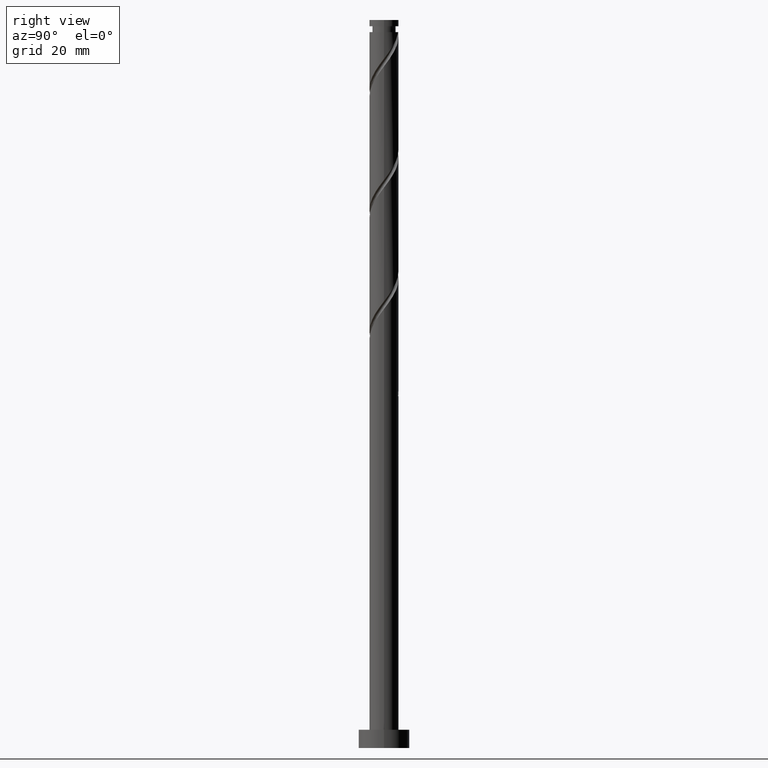
[diagram: clean part render]
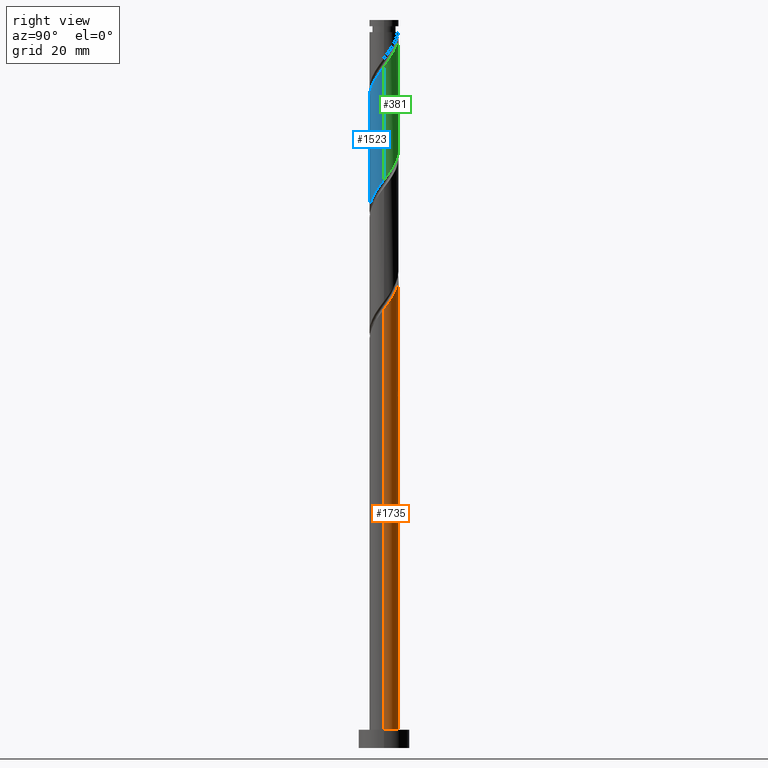
[diagram: same view with three faces highlighted in distinct colors, each labeled with its STEP entity id]
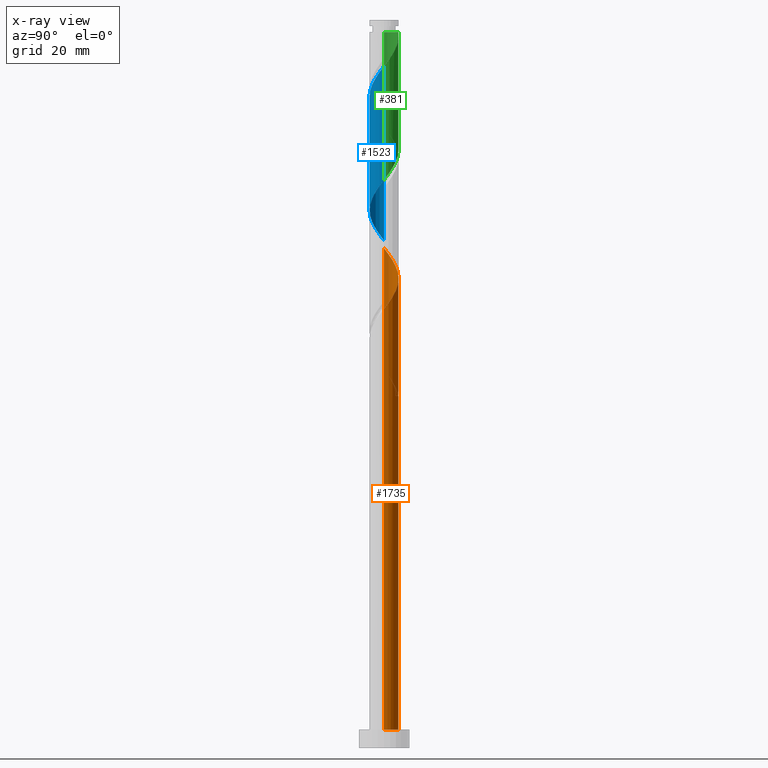
[diagram: x-ray of the same camera — body ghosted, the three highlighted faces saturated]
A machine part, right view with three faces highlighted in distinct colors.
The next image is the same camera in x-ray (body ghosted, the three faces saturated) — at least one of them is partly hidden behind the body in this view.
Their STEP definitions:

[orange] entity #1735 — the highlighted cylindrical surface (edge-blend (fillet) strip) has radius 4 mm, axis along (-0, -0, -1).
#6 =( BOUNDED_CURVE ( )  B_SPLINE_CURVE ( 2, ( #955, #1389, #193, #719, #1507, #1363, #165, #1101, #58, #158, #695, #1652, #587, #1117, #30, #1669, #457, #1231, #560, #988, #813, #443, #1354, #1092, #973, #961, #684 ),
 .UNSPECIFIED., .F., .T. ) 
 B_SPLINE_CURVE_WITH_KNOTS ( ( 3, 2, 2, 2, 2, 2, 2, 2, 2, 2, 2, 2, 2, 3 ),
 ( 0.1795317669814464612, 0.1875000000000000000, 0.1979166666666666297, 0.2083333333333333703, 0.2187500000000000000, 0.2291666666666666297, 0.2395833333333333703, 0.2500000000000000000, 0.2604166666666666297, 0.2708333333333333703, 0.2812500000000000000, 0.2916666666666666297, 0.3020833333333333703, 0.3045317669814465722 ),
 .UNSPECIFIED. ) 
 CURVE ( )  GEOMETRIC_REPRESENTATION_ITEM ( )  RATIONAL_B_SPLINE_CURVE ( ( 0.9062941362546487190, 0.9031415850403532453, 0.9090909090909286006, 0.9013135103398470793, 0.9090909090909286006, 0.9013135103398470793, 0.9090909090909286006, 0.9013135103398470793, 0.9090909090909286006, 0.9013135103398470793, 0.9090909090909286006, 0.9013135103398470793, 0.9090909090909286006, 0.9013135103398470793, 0.9090909090909286006, 0.9013135103398470793, 0.9090909090909286006, 0.9013135103398470793, 0.9090909090909286006, 0.9013135103398470793, 0.9090909090909286006, 0.9013135103398470793, 0.9090909090909286006, 0.9013135103398470793, 0.9090909090909286006, 0.9072628343904222126, 0.9062941362546487190 ) ) 
 REPRESENTATION_ITEM ( '' )  );
#15 = CARTESIAN_POINT ( 'NONE',  ( -3.960099130553272673, 0.7713189730113414466, 102.9342140720617920 ) ) ;
#24 = DIRECTION ( 'NONE',  ( -0.000000000000000000, -0.000000000000000000, -1.000000000000000000 ) ) ;
#30 = CARTESIAN_POINT ( 'NONE',  ( -0.7959899496852970158, 3.920000000000007034, 130.0175474053951632 ) ) ;
#35 = CARTESIAN_POINT ( 'NONE',  ( -2.209008691072453789, 3.334708473430078257, 100.8508807387284918 ) ) ;
#58 = CARTESIAN_POINT ( 'NONE',  ( 2.209008691072459563, 3.334708473430083142, 125.8508807387284918 ) ) ;
#63 = CARTESIAN_POINT ( 'NONE',  ( -0.2457034069343166927, 3.992446597741898806, 98.07310296095072033 ) ) ;
#78 = CARTESIAN_POINT ( 'NONE',  ( 0.000000000000000000, 0.000000000000000000, 200.0000000000000000 ) ) ;
#101 = ORIENTED_EDGE ( 'NONE', *, *, #253, .T. ) ;
#111 = CARTESIAN_POINT ( 'NONE',  ( -4.000000000000007994, -2.706634984295222451E-15, 103.9539807501851101 ) ) ;
#158 = CARTESIAN_POINT ( 'NONE',  ( 1.769985991819537530, 3.625529984802036143, 126.5453251831729347 ) ) ;
#162 = CARTESIAN_POINT ( 'NONE',  ( -1.783437906669447903, 3.580411880364402499, 98.07310296095070612 ) ) ;
#165 = CARTESIAN_POINT ( 'NONE',  ( 2.996824607992359724, 2.649347517584565992, 124.4619918498395919 ) ) ;
#172 = CARTESIAN_POINT ( 'NONE',  ( -2.996824607992350842, 2.649347517584564216, 102.2397696276173775 ) ) ;
#174 = EDGE_CURVE ( 'NONE', #388, #1060, #589, .T. ) ;
#190 = CARTESIAN_POINT ( 'NONE',  ( -3.815205935069465149, 1.312067740227889523, 104.3231029609507203 ) ) ;
#193 = CARTESIAN_POINT ( 'NONE',  ( 3.920000000000007034, 0.7959899496852972378, 121.6842140720618204 ) ) ;
#213 = CARTESIAN_POINT ( 'NONE',  ( 0.2799121591427054523, 4.024794064930535598, 97.37865851650629168 ) ) ;
#217 = AXIS2_PLACEMENT_3D ( 'NONE', #978, #550, #827 ) ;
#253 = EDGE_CURVE ( 'NONE', #1356, #337, #1515, .T. ) ;
#281 = CARTESIAN_POINT ( 'NONE',  ( -3.792814557677654630, 1.270652482415438600, 102.2397696276173775 ) ) ;
#282 = CARTESIAN_POINT ( 'NONE',  ( 4.000000000000007994, 1.046764911053401024E-16, 120.6206474168517673 ) ) ;
#291 = CARTESIAN_POINT ( 'NONE',  ( -4.000000000000000000, 0.000000000000000000, 5.000000000000000000 ) ) ;
#309 = CARTESIAN_POINT ( 'NONE',  ( -2.649347517584567324, 2.996824607992357059, 99.46199184983960606 ) ) ;
#318 = CARTESIAN_POINT ( 'NONE',  ( -4.000000000000000000, 4.740349668627582263E-15, 106.0811140606051879 ) ) ;
#323 = DIRECTION ( 'NONE',  ( -1.000000000000000000, 0.000000000000000000, 0.000000000000000000 ) ) ;
#337 = VERTEX_POINT ( 'NONE', #1238 ) ;
#357 = ORIENTED_EDGE ( 'NONE', *, *, #404, .F. ) ;
#388 = VERTEX_POINT ( 'NONE', #426 ) ;
#404 = EDGE_CURVE ( 'NONE', #1356, #672, #6, .T. ) ;
#426 = CARTESIAN_POINT ( 'NONE',  ( -0.7959899496852969047, 3.920000000000007478, 96.68421407206182039 ) ) ;
#429 = VECTOR ( 'NONE', #24, 1000.000000000000000 ) ;
#439 = AXIS2_PLACEMENT_3D ( 'NONE', #1216, #1241, #957 ) ;
#443 = CARTESIAN_POINT ( 'NONE',  ( -3.625529984802037031, 1.769985991819535753, 134.8786585165062775 ) ) ;
#457 = CARTESIAN_POINT ( 'NONE',  ( -1.783437906669447903, 3.580411880364402499, 131.4064362942840773 ) ) ;
#469 = DIRECTION ( 'NONE',  ( -0.000000000000000000, -0.000000000000000000, -1.000000000000000000 ) ) ;
#481 = CARTESIAN_POINT ( 'NONE',  ( -4.000000000000007994, -2.706634984295222451E-15, 103.9539807501851101 ) ) ;
#518 = ORIENTED_EDGE ( 'NONE', *, *, #912, .T. ) ;
#550 = DIRECTION ( 'NONE',  ( 0.000000000000000000, -2.602085213965211588E-14, -1.000000000000000000 ) ) ;
#557 = CARTESIAN_POINT ( 'NONE',  ( -3.345617825659326083, 2.254808073111003619, 102.9342140720618488 ) ) ;
#560 = CARTESIAN_POINT ( 'NONE',  ( -2.649347517584567324, 2.996824607992357059, 132.7953251831729062 ) ) ;
#563 = CARTESIAN_POINT ( 'NONE',  ( -0.7959899496852969047, 3.920000000000007478, 96.68421407206182039 ) ) ;
#576 = CARTESIAN_POINT ( 'NONE',  ( 4.000000000000000000, 4.898587196589412829E-16, 200.0000000000000000 ) ) ;
#587 = CARTESIAN_POINT ( 'NONE',  ( 0.2457034069343214111, 3.992446597741906356, 128.6286585165062775 ) ) ;
#589 =( BOUNDED_CURVE ( )  B_SPLINE_CURVE ( 2, ( #563, #921, #162, #691, #309, #1376, #706, #1476, #281, #15, #1673, #1624, #111 ),
 .UNSPECIFIED., .F., .T. ) 
 B_SPLINE_CURVE_WITH_KNOTS ( ( 3, 2, 2, 2, 2, 2, 3 ),
 ( 0.000000000000000000, 0.01041666666666662966, 0.02083333333333337034, 0.03125000000000000000, 0.04166666666666662966, 0.05208333333333337034, 0.05453176698144659301 ),
 .UNSPECIFIED. ) 
 CURVE ( )  GEOMETRIC_REPRESENTATION_ITEM ( )  RATIONAL_B_SPLINE_CURVE ( ( 0.9090909090909286006, 0.9013135103398470793, 0.9090909090909286006, 0.9013135103398470793, 0.9090909090909286006, 0.9013135103398470793, 0.9090909090909286006, 0.9013135103398470793, 0.9090909090909286006, 0.9013135103398470793, 0.9090909090909286006, 0.9072628343904221015, 0.9062941362546486079 ) ) 
 REPRESENTATION_ITEM ( '' )  );
#638 = VERTEX_POINT ( 'NONE', #1332 ) ;
#672 = VERTEX_POINT ( 'NONE', #1592 ) ;
#683 = EDGE_LOOP ( 'NONE', ( #357, #101, #1488, #964, #1299, #518, #1640, #948 ) ) ;
#684 = CARTESIAN_POINT ( 'NONE',  ( -4.000000000000007994, -2.706634984295222451E-15, 137.2873140835184245 ) ) ;
#691 = CARTESIAN_POINT ( 'NONE',  ( -2.254808073111005395, 3.345617825659331412, 98.76754740539513477 ) ) ;
#695 = CARTESIAN_POINT ( 'NONE',  ( 1.270652482415440376, 3.792814557677653742, 127.2397696276173775 ) ) ;
#699 = CARTESIAN_POINT ( 'NONE',  ( -2.648031390325375600, 3.043886962058126588, 101.5453251831729204 ) ) ;
#706 = CARTESIAN_POINT ( 'NONE',  ( -3.334708473430084030, 2.209008691072459118, 100.8508807387284918 ) ) ;
#716 = CARTESIAN_POINT ( 'NONE',  ( -3.580411880364394950, 1.783437906669446349, 103.6286585165062633 ) ) ;
#719 = CARTESIAN_POINT ( 'NONE',  ( 3.815205935069472254, 1.312067740227889523, 122.3786585165062633 ) ) ;
#725 = CARTESIAN_POINT ( 'NONE',  ( -1.270652482415435047, 3.792814557677647525, 99.46199184983959185 ) ) ;
#757 = CARTESIAN_POINT ( 'NONE',  ( -1.769985991819531534, 3.625529984802031702, 100.1564362942840347 ) ) ;
#798 = AXIS2_PLACEMENT_3D ( 'NONE', #78, #469, #323 ) ;
#810 = CARTESIAN_POINT ( 'NONE',  ( -3.999999999999999112, 0.4020151261036938872, 105.5476876914159448 ) ) ;
#813 = CARTESIAN_POINT ( 'NONE',  ( -3.334708473430084030, 2.209008691072459118, 134.1842140720618488 ) ) ;
#827 = DIRECTION ( 'NONE',  ( 0.000000000000000000, 1.000000000000000000, -2.775557561562891351E-14 ) ) ;
#845 = CARTESIAN_POINT ( 'NONE',  ( -3.919999999999999929, 0.7959899496852972378, 105.0175474053951206 ) ) ;
#912 = EDGE_CURVE ( 'NONE', #388, #1451, #1506, .T. ) ;
#921 = CARTESIAN_POINT ( 'NONE',  ( -1.312067740227890189, 3.815205935069471810, 97.37865851650624904 ) ) ;
#948 = ORIENTED_EDGE ( 'NONE', *, *, #1635, .F. ) ;
#955 = CARTESIAN_POINT ( 'NONE',  ( 4.000000000000007994, 1.046764911053401024E-16, 120.6206474168517673 ) ) ;
#957 = DIRECTION ( 'NONE',  ( 1.000000000000000000, 0.000000000000000000, 0.000000000000000000 ) ) ;
#961 = CARTESIAN_POINT ( 'NONE',  ( -4.000000000000007994, 0.1229678066306816031, 137.1241503954902896 ) ) ;
#964 = ORIENTED_EDGE ( 'NONE', *, *, #1126, .F. ) ;
#973 = CARTESIAN_POINT ( 'NONE',  ( -3.992446597741906356, 0.2457034069343187743, 136.9619918498395919 ) ) ;
#978 = CARTESIAN_POINT ( 'NONE',  ( 0.000000000000000000, 0.000000000000000000, 96.68421407206193408 ) ) ;
#988 = CARTESIAN_POINT ( 'NONE',  ( -3.043886962058130141, 2.648031390325381373, 133.4897696276173633 ) ) ;
#993 = CARTESIAN_POINT ( 'NONE',  ( -4.000000000000000000, 0.000000000000000000, 200.0000000000000000 ) ) ;
#997 = EDGE_CURVE ( 'NONE', #638, #1451, #1561, .T. ) ;
#1060 = VERTEX_POINT ( 'NONE', #481 ) ;
#1079 = CARTESIAN_POINT ( 'NONE',  ( 0.7959899496852979039, 3.919999999999999041, 96.68421407206182039 ) ) ;
#1092 = CARTESIAN_POINT ( 'NONE',  ( -3.960099130553272673, 0.7713189730113414466, 136.2675474053951064 ) ) ;
#1101 = CARTESIAN_POINT ( 'NONE',  ( 2.648031390325384038, 3.043886962058128809, 125.1564362942839921 ) ) ;
#1103 = VECTOR ( 'NONE', #1557, 1000.000000000000000 ) ;
#1117 = CARTESIAN_POINT ( 'NONE',  ( -0.2799121591427010669, 4.024794064930541815, 129.3231029609507345 ) ) ;
#1126 = EDGE_CURVE ( 'NONE', #1060, #1499, #1285, .T. ) ;
#1188 = CIRCLE ( 'NONE', #439, 4.000000000000000000 ) ;
#1216 = CARTESIAN_POINT ( 'NONE',  ( 0.000000000000000000, 0.000000000000000000, 5.000000000000000000 ) ) ;
#1231 = CARTESIAN_POINT ( 'NONE',  ( -2.254808073111005395, 3.345617825659331412, 132.1008807387285060 ) ) ;
#1238 = CARTESIAN_POINT ( 'NONE',  ( 4.000000000000000000, 4.898587196589412829E-16, 5.000000000000000000 ) ) ;
#1241 = DIRECTION ( 'NONE',  ( 0.000000000000000000, 0.000000000000000000, 1.000000000000000000 ) ) ;
#1257 = LINE ( 'NONE', #1691, #1274 ) ;
#1266 = FACE_OUTER_BOUND ( 'NONE', #683, .T. ) ;
#1274 = VECTOR ( 'NONE', #1543, 1000.000000000000000 ) ;
#1285 = LINE ( 'NONE', #993, #1103 ) ;
#1299 = ORIENTED_EDGE ( 'NONE', *, *, #174, .F. ) ;
#1332 = CARTESIAN_POINT ( 'NONE',  ( -4.000000000000000000, 4.740349668627582263E-15, 106.0811140606051879 ) ) ;
#1354 = CARTESIAN_POINT ( 'NONE',  ( -3.792814557677654630, 1.270652482415438600, 135.5731029609507345 ) ) ;
#1356 = VERTEX_POINT ( 'NONE', #282 ) ;
#1363 = CARTESIAN_POINT ( 'NONE',  ( 3.345617825659333633, 2.254808073111004063, 123.7675474053951490 ) ) ;
#1376 = CARTESIAN_POINT ( 'NONE',  ( -3.043886962058130141, 2.648031390325381373, 100.1564362942840489 ) ) ;
#1389 = CARTESIAN_POINT ( 'NONE',  ( 4.000000000000007105, 0.4020151261036901125, 121.1540737860410815 ) ) ;
#1409 = EDGE_CURVE ( 'NONE', #337, #1499, #1188, .T. ) ;
#1451 = VERTEX_POINT ( 'NONE', #1079 ) ;
#1476 = CARTESIAN_POINT ( 'NONE',  ( -3.625529984802037031, 1.769985991819535753, 101.5453251831729062 ) ) ;
#1488 = ORIENTED_EDGE ( 'NONE', *, *, #1409, .T. ) ;
#1499 = VERTEX_POINT ( 'NONE', #291 ) ;
#1506 = CIRCLE ( 'NONE', #217, 4.000000000000000000 ) ;
#1507 = CARTESIAN_POINT ( 'NONE',  ( 3.580411880364403387, 1.783437906669446793, 123.0731029609507061 ) ) ;
#1515 = LINE ( 'NONE', #576, #429 ) ;
#1543 = DIRECTION ( 'NONE',  ( -0.000000000000000000, -0.000000000000000000, -1.000000000000000000 ) ) ;
#1557 = DIRECTION ( 'NONE',  ( -0.000000000000000000, -0.000000000000000000, -1.000000000000000000 ) ) ;
#1561 =( BOUNDED_CURVE ( )  B_SPLINE_CURVE ( 2, ( #318, #810, #845, #190, #716, #557, #172, #699, #35, #757, #725, #1674, #63, #213, #1685 ),
 .UNSPECIFIED., .F., .T. ) 
 B_SPLINE_CURVE_WITH_KNOTS ( ( 3, 2, 2, 2, 2, 2, 2, 3 ),
 ( 0.9295317669814464612, 0.9375000000000000000, 0.9479166666666666297, 0.9583333333333333703, 0.9687500000000000000, 0.9791666666666666297, 0.9895833333333333703, 1.000000000000000000 ),
 .UNSPECIFIED. ) 
 CURVE ( )  GEOMETRIC_REPRESENTATION_ITEM ( )  RATIONAL_B_SPLINE_CURVE ( ( 0.9062941362546415025, 0.9031415850403459178, 0.9090909090909213841, 0.9013135103398396408, 0.9090909090909213841, 0.9013135103398396408, 0.9090909090909213841, 0.9013135103398396408, 0.9090909090909213841, 0.9013135103398396408, 0.9090909090909213841, 0.9013135103398396408, 0.9090909090909213841, 0.9013135103398396408, 0.9090909090909213841 ) ) 
 REPRESENTATION_ITEM ( '' )  );
#1592 = CARTESIAN_POINT ( 'NONE',  ( -4.000000000000007994, -2.706634984295222451E-15, 137.2873140835184245 ) ) ;
#1624 = CARTESIAN_POINT ( 'NONE',  ( -4.000000000000008882, 0.1229678066306806039, 103.7908170621569752 ) ) ;
#1635 = EDGE_CURVE ( 'NONE', #672, #638, #1257, .T. ) ;
#1640 = ORIENTED_EDGE ( 'NONE', *, *, #997, .F. ) ;
#1652 = CARTESIAN_POINT ( 'NONE',  ( 0.7713189730113436671, 3.960099130553271340, 127.9342140720618204 ) ) ;
#1669 = CARTESIAN_POINT ( 'NONE',  ( -1.312067740227890189, 3.815205935069471810, 130.7119918498396203 ) ) ;
#1673 = CARTESIAN_POINT ( 'NONE',  ( -3.992446597741906356, 0.2457034069343187743, 103.6286585165062775 ) ) ;
#1674 = CARTESIAN_POINT ( 'NONE',  ( -0.7713189730113392262, 3.960099130553265123, 98.76754740539519162 ) ) ;
#1683 = CYLINDRICAL_SURFACE ( 'NONE', #798, 4.000000000000000000 ) ;
#1685 = CARTESIAN_POINT ( 'NONE',  ( 0.7959899496852979039, 3.919999999999999041, 96.68421407206182039 ) ) ;
#1691 = CARTESIAN_POINT ( 'NONE',  ( -4.000000000000000000, 0.000000000000000000, 200.0000000000000000 ) ) ;
#1735 = ADVANCED_FACE ( 'NONE', ( #1266 ), #1683, .T. ) ;

[blue] entity #1523 — the highlighted cylindrical surface (edge-blend (fillet) strip) has radius 4 mm, axis along (-0, -0, -1).
#18 = CYLINDRICAL_SURFACE ( 'NONE', #1246, 4.000000000000000000 ) ;
#56 =( BOUNDED_CURVE ( )  B_SPLINE_CURVE ( 2, ( #1301, #505, #1166, #780, #515, #391, #801, #1325, #1061, #533, #1708, #1588, #1472, #382, #271, #639, #649, #1318, #930, #243, #1726, #911, #1446, #132, #261, #497, #1599 ),
 .UNSPECIFIED., .F., .T. ) 
 B_SPLINE_CURVE_WITH_KNOTS ( ( 3, 2, 2, 2, 2, 2, 2, 2, 2, 2, 2, 2, 2, 3 ),
 ( 0.5545317669814462391, 0.5625000000000000000, 0.5729166666666666297, 0.5833333333333333703, 0.5937500000000000000, 0.6041666666666666297, 0.6145833333333333703, 0.6250000000000000000, 0.6354166666666666297, 0.6458333333333333703, 0.6562500000000000000, 0.6666666666666666297, 0.6770833333333333703, 0.6795317669814464612 ),
 .UNSPECIFIED. ) 
 CURVE ( )  GEOMETRIC_REPRESENTATION_ITEM ( )  RATIONAL_B_SPLINE_CURVE ( ( 0.9062941362546417245, 0.9031415850403458068, 0.9090909090909213841, 0.9013135103398396408, 0.9090909090909213841, 0.9013135103398396408, 0.9090909090909213841, 0.9013135103398396408, 0.9090909090909213841, 0.9013135103398396408, 0.9090909090909213841, 0.9013135103398396408, 0.9090909090909213841, 0.9013135103398396408, 0.9090909090909213841, 0.9013135103398396408, 0.9090909090909213841, 0.9013135103398396408, 0.9090909090909213841, 0.9013135103398396408, 0.9090909090909213841, 0.9013135103398396408, 0.9090909090909213841, 0.9013135103398396408, 0.9090909090909213841, 0.9072628343904149961, 0.9062941362546415025 ) ) 
 REPRESENTATION_ITEM ( '' )  );
#66 = CARTESIAN_POINT ( 'NONE',  ( -2.996824607992357059, -2.649347517584567324, 174.4619918498395919 ) ) ;
#74 = CARTESIAN_POINT ( 'NONE',  ( 2.254808073111004063, -3.345617825659333633, 182.1008807387285060 ) ) ;
#82 = CARTESIAN_POINT ( 'NONE',  ( -4.000000000000007994, -1.360794384369421244E-15, 170.6206474168518241 ) ) ;
#91 = CARTESIAN_POINT ( 'NONE',  ( -3.580411880364402499, -1.783437906669447903, 173.0731029609507345 ) ) ;
#132 = CARTESIAN_POINT ( 'NONE',  ( -3.960099130553265123, -0.7713189730113381160, 140.4342140720617920 ) ) ;
#168 = CARTESIAN_POINT ( 'NONE',  ( 4.000000000000000000, 5.443177537477727576E-15, 156.0811140606052163 ) ) ;
#178 = CARTESIAN_POINT ( 'NONE',  ( 4.000000000000007994, -1.226210324376841104E-15, 187.2873140835184813 ) ) ;
#199 = CARTESIAN_POINT ( 'NONE',  ( 0.7959899496852973488, -3.920000000000007034, 180.0175474053951348 ) ) ;
#209 = CARTESIAN_POINT ( 'NONE',  ( 3.992446597741906356, -0.2457034069343211891, 186.9619918498396487 ) ) ;
#225 = CARTESIAN_POINT ( 'NONE',  ( -2.209008691072459118, -3.334708473430083586, 175.8508807387285060 ) ) ;
#232 = CARTESIAN_POINT ( 'NONE',  ( 3.625529984802036143, -1.769985991819536864, 184.8786585165062206 ) ) ;
#243 = CARTESIAN_POINT ( 'NONE',  ( -3.043886962058126588, -2.648031390325375600, 143.2119918498395919 ) ) ;
#261 = CARTESIAN_POINT ( 'NONE',  ( -3.992446597741898806, -0.2457034069343163318, 139.7397696276173633 ) ) ;
#271 = CARTESIAN_POINT ( 'NONE',  ( -0.7959899496852974599, -3.919999999999999929, 146.6842140720618488 ) ) ;
#297 = CARTESIAN_POINT ( 'NONE',  ( 0.000000000000000000, 0.000000000000000000, 200.0000000000000000 ) ) ;
#345 = CARTESIAN_POINT ( 'NONE',  ( -0.2457034069343189131, -3.992446597741906356, 178.6286585165063059 ) ) ;
#382 = CARTESIAN_POINT ( 'NONE',  ( -0.2799121591427067290, -4.024794064930535598, 147.3786585165063059 ) ) ;
#385 = DIRECTION ( 'NONE',  ( -0.000000000000000000, -0.000000000000000000, -1.000000000000000000 ) ) ;
#391 = CARTESIAN_POINT ( 'NONE',  ( 3.345617825659324751, -2.254808073111004951, 152.9342140720618772 ) ) ;
#395 = LINE ( 'NONE', #1189, #900 ) ;
#456 = EDGE_CURVE ( 'NONE', #1053, #1471, #765, .T. ) ;
#473 = CARTESIAN_POINT ( 'NONE',  ( 3.960099130553271340, -0.7713189730113434450, 186.2675474053951916 ) ) ;
#497 = CARTESIAN_POINT ( 'NONE',  ( -4.000000000000000000, -0.1229678066306849060, 139.5776110819666940 ) ) ;
#505 = CARTESIAN_POINT ( 'NONE',  ( 4.000000000000000888, -0.4020151261036831181, 155.5476876914160300 ) ) ;
#511 = EDGE_LOOP ( 'NONE', ( #1278, #1677, #1372, #1595 ) ) ;
#515 = CARTESIAN_POINT ( 'NONE',  ( 3.580411880364393618, -1.783437906669448347, 153.6286585165062206 ) ) ;
#533 = CARTESIAN_POINT ( 'NONE',  ( 1.769985991819530868, -3.625529984802032590, 150.1564362942841058 ) ) ;
#564 = FACE_OUTER_BOUND ( 'NONE', #511, .T. ) ;
#581 = EDGE_CURVE ( 'NONE', #1471, #1289, #395, .T. ) ;
#604 = CARTESIAN_POINT ( 'NONE',  ( 3.043886962058129697, -2.648031390325381373, 183.4897696276173065 ) ) ;
#612 = CARTESIAN_POINT ( 'NONE',  ( -1.769985991819536864, -3.625529984802036587, 176.5453251831729062 ) ) ;
#617 = CARTESIAN_POINT ( 'NONE',  ( -4.000000000000007994, -1.360794384369421047E-15, 170.6206474168518241 ) ) ;
#619 = CARTESIAN_POINT ( 'NONE',  ( -4.000000000000007105, -0.4020151261036856716, 171.1540737860410388 ) ) ;
#631 = EDGE_CURVE ( 'NONE', #1053, #953, #1343, .T. ) ;
#639 = CARTESIAN_POINT ( 'NONE',  ( -1.312067740227891299, -3.815205935069465149, 145.9897696276173917 ) ) ;
#649 = CARTESIAN_POINT ( 'NONE',  ( -1.783437906669446349, -3.580411880364394950, 145.2953251831729347 ) ) ;
#670 = CARTESIAN_POINT ( 'NONE',  ( -4.000000000000000000, 0.000000000000000000, 200.0000000000000000 ) ) ;
#745 = CARTESIAN_POINT ( 'NONE',  ( -2.648031390325381373, -3.043886962058129697, 175.1564362942840773 ) ) ;
#765 =( BOUNDED_CURVE ( )  B_SPLINE_CURVE ( 2, ( #82, #619, #1279, #995, #91, #1297, #66, #745, #225, #612, #863, #1143, #345, #1010, #199, #1127, #1697, #74, #1422, #604, #871, #232, #1688, #473, #209, #1559, #1271 ),
 .UNSPECIFIED., .F., .T. ) 
 B_SPLINE_CURVE_WITH_KNOTS ( ( 3, 2, 2, 2, 2, 2, 2, 2, 2, 2, 2, 2, 2, 3 ),
 ( 0.5545317669814462391, 0.5625000000000000000, 0.5729166666666667407, 0.5833333333333332593, 0.5937500000000000000, 0.6041666666666667407, 0.6145833333333332593, 0.6250000000000000000, 0.6354166666666667407, 0.6458333333333332593, 0.6562500000000000000, 0.6666666666666667407, 0.6770833333333332593, 0.6795317669814459061 ),
 .UNSPECIFIED. ) 
 CURVE ( )  GEOMETRIC_REPRESENTATION_ITEM ( )  RATIONAL_B_SPLINE_CURVE ( ( 0.9062941362546489410, 0.9031415850403533563, 0.9090909090909286006, 0.9013135103398470793, 0.9090909090909286006, 0.9013135103398470793, 0.9090909090909286006, 0.9013135103398470793, 0.9090909090909286006, 0.9013135103398470793, 0.9090909090909286006, 0.9013135103398470793, 0.9090909090909286006, 0.9013135103398470793, 0.9090909090909286006, 0.9013135103398470793, 0.9090909090909286006, 0.9013135103398470793, 0.9090909090909286006, 0.9013135103398470793, 0.9090909090909286006, 0.9013135103398470793, 0.9090909090909286006, 0.9013135103398470793, 0.9090909090909286006, 0.9072628343904226567, 0.9062941362546492741 ) ) 
 REPRESENTATION_ITEM ( '' )  );
#780 = CARTESIAN_POINT ( 'NONE',  ( 3.815205935069463816, -1.312067740227892187, 154.3231029609507345 ) ) ;
#801 = CARTESIAN_POINT ( 'NONE',  ( 2.996824607992349954, -2.649347517584564660, 152.2397696276173349 ) ) ;
#825 = DIRECTION ( 'NONE',  ( -0.000000000000000000, -0.000000000000000000, -1.000000000000000000 ) ) ;
#863 = CARTESIAN_POINT ( 'NONE',  ( -1.270652482415439932, -3.792814557677653742, 177.2397696276173633 ) ) ;
#871 = CARTESIAN_POINT ( 'NONE',  ( 3.334708473430082698, -2.209008691072460895, 184.1842140720618488 ) ) ;
#875 = VECTOR ( 'NONE', #385, 1000.000000000000000 ) ;
#900 = VECTOR ( 'NONE', #1178, 1000.000000000000000 ) ;
#911 = CARTESIAN_POINT ( 'NONE',  ( -3.625529984802032590, -1.769985991819530868, 141.8231029609507345 ) ) ;
#930 = CARTESIAN_POINT ( 'NONE',  ( -2.649347517584564660, -2.996824607992349954, 143.9064362942840205 ) ) ;
#953 = VERTEX_POINT ( 'NONE', #1081 ) ;
#995 = CARTESIAN_POINT ( 'NONE',  ( -3.815205935069472254, -1.312067740227889745, 172.3786585165062775 ) ) ;
#1010 = CARTESIAN_POINT ( 'NONE',  ( 0.2799121591427036204, -4.024794064930541815, 179.3231029609507061 ) ) ;
#1053 = VERTEX_POINT ( 'NONE', #617 ) ;
#1061 = CARTESIAN_POINT ( 'NONE',  ( 2.209008691072452013, -3.334708473430079145, 150.8508807387284776 ) ) ;
#1081 = CARTESIAN_POINT ( 'NONE',  ( -4.000000000000000000, 4.740349668627582263E-15, 139.4144473939385307 ) ) ;
#1127 = CARTESIAN_POINT ( 'NONE',  ( 1.312067740227889745, -3.815205935069472254, 180.7119918498396203 ) ) ;
#1143 = CARTESIAN_POINT ( 'NONE',  ( -0.7713189730113416687, -3.960099130553272673, 177.9342140720618488 ) ) ;
#1166 = CARTESIAN_POINT ( 'NONE',  ( 3.919999999999999929, -0.7959899496852976819, 155.0175474053951348 ) ) ;
#1178 = DIRECTION ( 'NONE',  ( -0.000000000000000000, -0.000000000000000000, -1.000000000000000000 ) ) ;
#1189 = CARTESIAN_POINT ( 'NONE',  ( 4.000000000000000000, 4.898587196589412829E-16, 200.0000000000000000 ) ) ;
#1230 = EDGE_CURVE ( 'NONE', #1289, #953, #56, .T. ) ;
#1246 = AXIS2_PLACEMENT_3D ( 'NONE', #297, #825, #1365 ) ;
#1271 = CARTESIAN_POINT ( 'NONE',  ( 4.000000000000007994, -1.226210324376841104E-15, 187.2873140835184813 ) ) ;
#1278 = ORIENTED_EDGE ( 'NONE', *, *, #581, .F. ) ;
#1279 = CARTESIAN_POINT ( 'NONE',  ( -3.920000000000007034, -0.7959899496852975709, 171.6842140720618204 ) ) ;
#1289 = VERTEX_POINT ( 'NONE', #168 ) ;
#1297 = CARTESIAN_POINT ( 'NONE',  ( -3.345617825659332301, -2.254808073111004951, 173.7675474053951348 ) ) ;
#1301 = CARTESIAN_POINT ( 'NONE',  ( 4.000000000000000000, 5.443177537477727576E-15, 156.0811140606052163 ) ) ;
#1318 = CARTESIAN_POINT ( 'NONE',  ( -2.254808073111003619, -3.345617825659326083, 144.6008807387285060 ) ) ;
#1325 = CARTESIAN_POINT ( 'NONE',  ( 2.648031390325374268, -3.043886962058126588, 151.5453251831729347 ) ) ;
#1343 = LINE ( 'NONE', #670, #875 ) ;
#1365 = DIRECTION ( 'NONE',  ( -1.000000000000000000, 0.000000000000000000, 0.000000000000000000 ) ) ;
#1372 = ORIENTED_EDGE ( 'NONE', *, *, #631, .T. ) ;
#1422 = CARTESIAN_POINT ( 'NONE',  ( 2.649347517584566880, -2.996824607992357503, 182.7953251831729347 ) ) ;
#1446 = CARTESIAN_POINT ( 'NONE',  ( -3.792814557677647525, -1.270652482415434603, 141.1286585165063059 ) ) ;
#1471 = VERTEX_POINT ( 'NONE', #178 ) ;
#1472 = CARTESIAN_POINT ( 'NONE',  ( 0.2457034069343151383, -3.992446597741900582, 148.0731029609507061 ) ) ;
#1523 = ADVANCED_FACE ( 'NONE', ( #564 ), #18, .T. ) ;
#1559 = CARTESIAN_POINT ( 'NONE',  ( 4.000000000000006217, -0.1229678066307134249, 187.1241503954902896 ) ) ;
#1588 = CARTESIAN_POINT ( 'NONE',  ( 0.7713189730113366727, -3.960099130553265123, 148.7675474053951632 ) ) ;
#1595 = ORIENTED_EDGE ( 'NONE', *, *, #1230, .F. ) ;
#1599 = CARTESIAN_POINT ( 'NONE',  ( -4.000000000000000000, 4.740349668627582263E-15, 139.4144473939385307 ) ) ;
#1677 = ORIENTED_EDGE ( 'NONE', *, *, #456, .F. ) ;
#1688 = CARTESIAN_POINT ( 'NONE',  ( 3.792814557677653742, -1.270652482415440376, 185.5731029609507345 ) ) ;
#1697 = CARTESIAN_POINT ( 'NONE',  ( 1.783437906669446793, -3.580411880364403387, 181.4064362942841342 ) ) ;
#1708 = CARTESIAN_POINT ( 'NONE',  ( 1.270652482415433937, -3.792814557677647969, 149.4619918498395634 ) ) ;
#1726 = CARTESIAN_POINT ( 'NONE',  ( -3.334708473430078257, -2.209008691072453345, 142.5175474053950779 ) ) ;

[green] entity #381 — the highlighted cylindrical surface (edge-blend (fillet) strip) has radius 4 mm, axis along (-0, -0, -1).
#9 = CARTESIAN_POINT ( 'NONE',  ( 3.792814557677648413, 1.270652482415432605, 157.7953251831729062 ) ) ;
#21 = EDGE_CURVE ( 'NONE', #1471, #852, #123, .T. ) ;
#34 = CARTESIAN_POINT ( 'NONE',  ( 1.769985991819537530, 3.625529984802036143, 193.2119918498396487 ) ) ;
#38 = DIRECTION ( 'NONE',  ( -0.000000000000000000, -0.000000000000000000, -1.000000000000000000 ) ) ;
#44 = CARTESIAN_POINT ( 'NONE',  ( 1.270652482415440376, 3.792814557677653742, 193.9064362942840773 ) ) ;
#48 = CYLINDRICAL_SURFACE ( 'NONE', #1155, 4.000000000000000000 ) ;
#87 = CARTESIAN_POINT ( 'NONE',  ( 4.000000000000007994, -1.226210324376841104E-15, 187.2873140835184813 ) ) ;
#95 = EDGE_LOOP ( 'NONE', ( #1083, #1425, #1692, #1171, #104 ) ) ;
#97 = CARTESIAN_POINT ( 'NONE',  ( 3.815205935069472254, 1.312067740227889523, 189.0453251831729631 ) ) ;
#104 = ORIENTED_EDGE ( 'NONE', *, *, #1600, .T. ) ;
#123 =( BOUNDED_CURVE ( )  B_SPLINE_CURVE ( 2, ( #87, #1429, #1294, #97, #623, #1158, #498, #1033, #1024, #34, #44, #1009, #566, #556, #1098 ),
 .UNSPECIFIED., .F., .T. ) 
 B_SPLINE_CURVE_WITH_KNOTS ( ( 3, 2, 2, 2, 2, 2, 2, 3 ),
 ( 0.6795317669814459061, 0.6875000000000000000, 0.6979166666666667407, 0.7083333333333332593, 0.7187500000000001110, 0.7291666666666668517, 0.7395833333333333703, 0.7500000000000001110 ),
 .UNSPECIFIED. ) 
 CURVE ( )  GEOMETRIC_REPRESENTATION_ITEM ( )  RATIONAL_B_SPLINE_CURVE ( ( 0.9062941362546492741, 0.9031415850403530232, 0.9090909090909286006, 0.9013135103398470793, 0.9090909090909286006, 0.9013135103398470793, 0.9090909090909286006, 0.9013135103398470793, 0.9090909090909286006, 0.9013135103398470793, 0.9090909090909286006, 0.9013135103398470793, 0.9090909090909286006, 0.9013135103398470793, 0.9090909090909286006 ) ) 
 REPRESENTATION_ITEM ( '' )  );
#126 = CARTESIAN_POINT ( 'NONE',  ( -1.769985991819531534, 3.625529984802031702, 166.8231029609507345 ) ) ;
#136 = CARTESIAN_POINT ( 'NONE',  ( -3.999999999999999112, -2.153344959881298813E-15, 172.7477807272718735 ) ) ;
#168 = CARTESIAN_POINT ( 'NONE',  ( 4.000000000000000000, 5.443177537477727576E-15, 156.0811140606052163 ) ) ;
#178 = CARTESIAN_POINT ( 'NONE',  ( 4.000000000000007994, -1.226210324376841104E-15, 187.2873140835184813 ) ) ;
#221 = DIRECTION ( 'NONE',  ( -0.000000000000000000, -0.000000000000000000, -1.000000000000000000 ) ) ;
#256 = CARTESIAN_POINT ( 'NONE',  ( 0.7959899496852979039, 3.919999999999999929, 163.3508807387284492 ) ) ;
#264 = CARTESIAN_POINT ( 'NONE',  ( -3.580411880364394950, 1.783437906669446349, 170.2953251831729631 ) ) ;
#320 = DIRECTION ( 'NONE',  ( -1.000000000000000000, 0.000000000000000000, 0.000000000000000000 ) ) ;
#354 = CARTESIAN_POINT ( 'NONE',  ( -3.999999999999999112, -2.153344959881298813E-15, 172.7477807272718735 ) ) ;
#375 = CARTESIAN_POINT ( 'NONE',  ( 4.000000000000000000, 0.1229678066306948842, 156.2442777486333512 ) ) ;
#381 = ADVANCED_FACE ( 'NONE', ( #1641 ), #48, .T. ) ;
#395 = LINE ( 'NONE', #1189, #900 ) ;
#405 = CARTESIAN_POINT ( 'NONE',  ( -0.7713189730113392262, 3.960099130553265123, 165.4342140720618772 ) ) ;
#420 = VERTEX_POINT ( 'NONE', #1223 ) ;
#434 = CARTESIAN_POINT ( 'NONE',  ( 0.000000000000000000, 0.000000000000000000, 200.0000000000000000 ) ) ;
#448 = CARTESIAN_POINT ( 'NONE',  ( -0.7959899496852952394, 3.919999999999988383, 196.6842140720618772 ) ) ;
#492 = VERTEX_POINT ( 'NONE', #354 ) ;
#498 = CARTESIAN_POINT ( 'NONE',  ( 2.996824607992359724, 2.649347517584565992, 191.1286585165062775 ) ) ;
#508 = CARTESIAN_POINT ( 'NONE',  ( -1.270652482415435047, 3.792814557677647525, 166.1286585165062775 ) ) ;
#519 = CARTESIAN_POINT ( 'NONE',  ( -3.999999999999998224, 0.4020151261036931656, 172.2143543580826304 ) ) ;
#527 = CARTESIAN_POINT ( 'NONE',  ( 2.649347517584564660, 2.996824607992349065, 160.5731029609507061 ) ) ;
#548 = VECTOR ( 'NONE', #1430, 1000.000000000000000 ) ;
#556 = CARTESIAN_POINT ( 'NONE',  ( -0.2799121591427067290, 4.024794064930541815, 195.9897696276173917 ) ) ;
#566 = CARTESIAN_POINT ( 'NONE',  ( 0.2457034069343214111, 3.992446597741906356, 195.2953251831729631 ) ) ;
#581 = EDGE_CURVE ( 'NONE', #1471, #1289, #395, .T. ) ;
#623 = CARTESIAN_POINT ( 'NONE',  ( 3.580411880364403387, 1.783437906669446793, 189.7397696276173633 ) ) ;
#642 = CARTESIAN_POINT ( 'NONE',  ( -3.815205935069465149, 1.312067740227889523, 170.9897696276174202 ) ) ;
#652 = CARTESIAN_POINT ( 'NONE',  ( 1.783437906669448347, 3.580411880364393618, 161.9619918498396203 ) ) ;
#732 = EDGE_CURVE ( 'NONE', #492, #1289, #1676, .T. ) ;
#785 = CARTESIAN_POINT ( 'NONE',  ( -2.996824607992350842, 2.649347517584564216, 168.9064362942840489 ) ) ;
#804 = CARTESIAN_POINT ( 'NONE',  ( -0.2457034069343166927, 3.992446597741898806, 164.7397696276174202 ) ) ;
#852 = VERTEX_POINT ( 'NONE', #448 ) ;
#877 = AXIS2_PLACEMENT_3D ( 'NONE', #983, #221, #1112 ) ;
#885 = CARTESIAN_POINT ( 'NONE',  ( -4.000000000000000000, 0.000000000000000000, 200.0000000000000000 ) ) ;
#900 = VECTOR ( 'NONE', #1178, 1000.000000000000000 ) ;
#915 = CARTESIAN_POINT ( 'NONE',  ( -3.919999999999999929, 0.7959899496852972378, 171.6842140720617920 ) ) ;
#983 = CARTESIAN_POINT ( 'NONE',  ( 0.000000000000000000, 0.000000000000000000, 196.6842140720618204 ) ) ;
#1009 = CARTESIAN_POINT ( 'NONE',  ( 0.7713189730113436671, 3.960099130553271340, 194.6008807387285060 ) ) ;
#1024 = CARTESIAN_POINT ( 'NONE',  ( 2.209008691072459563, 3.334708473430083142, 192.5175474053951348 ) ) ;
#1027 = CARTESIAN_POINT ( 'NONE',  ( 3.992446597741900582, 0.2457034069343148885, 156.4064362942839921 ) ) ;
#1033 = CARTESIAN_POINT ( 'NONE',  ( 2.648031390325384038, 3.043886962058128809, 191.8231029609506493 ) ) ;
#1036 = CARTESIAN_POINT ( 'NONE',  ( 0.2799121591427054523, 4.024794064930535598, 164.0453251831729347 ) ) ;
#1055 = CARTESIAN_POINT ( 'NONE',  ( 3.334708473430079145, 2.209008691072452901, 159.1842140720618204 ) ) ;
#1064 = CARTESIAN_POINT ( 'NONE',  ( -2.209008691072453789, 3.334708473430078257, 167.5175474053951632 ) ) ;
#1083 = ORIENTED_EDGE ( 'NONE', *, *, #21, .F. ) ;
#1098 = CARTESIAN_POINT ( 'NONE',  ( -0.7959899496852952394, 3.919999999999988383, 196.6842140720619057 ) ) ;
#1112 = DIRECTION ( 'NONE',  ( -1.000000000000000000, 0.000000000000000000, 0.000000000000000000 ) ) ;
#1147 = EDGE_CURVE ( 'NONE', #420, #492, #1149, .T. ) ;
#1149 = LINE ( 'NONE', #885, #548 ) ;
#1155 = AXIS2_PLACEMENT_3D ( 'NONE', #434, #38, #320 ) ;
#1158 = CARTESIAN_POINT ( 'NONE',  ( 3.345617825659333633, 2.254808073111004063, 190.4342140720617635 ) ) ;
#1171 = ORIENTED_EDGE ( 'NONE', *, *, #1147, .F. ) ;
#1178 = DIRECTION ( 'NONE',  ( -0.000000000000000000, -0.000000000000000000, -1.000000000000000000 ) ) ;
#1189 = CARTESIAN_POINT ( 'NONE',  ( 4.000000000000000000, 4.898587196589412829E-16, 200.0000000000000000 ) ) ;
#1209 = CARTESIAN_POINT ( 'NONE',  ( 3.625529984802033479, 1.769985991819529314, 158.4897696276173917 ) ) ;
#1223 = CARTESIAN_POINT ( 'NONE',  ( -3.999999999999988010, 0.000000000000000000, 196.6842140720618204 ) ) ;
#1289 = VERTEX_POINT ( 'NONE', #168 ) ;
#1294 = CARTESIAN_POINT ( 'NONE',  ( 3.920000000000007034, 0.7959899496852972378, 188.3508807387285060 ) ) ;
#1321 = CARTESIAN_POINT ( 'NONE',  ( -2.648031390325375600, 3.043886962058126588, 168.2119918498396203 ) ) ;
#1326 = CIRCLE ( 'NONE', #877, 3.999999999999988010 ) ;
#1425 = ORIENTED_EDGE ( 'NONE', *, *, #581, .T. ) ;
#1429 = CARTESIAN_POINT ( 'NONE',  ( 4.000000000000010658, 0.4020151261036666313, 187.8207404527077244 ) ) ;
#1430 = DIRECTION ( 'NONE',  ( -0.000000000000000000, -0.000000000000000000, -1.000000000000000000 ) ) ;
#1459 = CARTESIAN_POINT ( 'NONE',  ( 3.043886962058127033, 2.648031390325374268, 159.8786585165062775 ) ) ;
#1467 = CARTESIAN_POINT ( 'NONE',  ( -3.345617825659326083, 2.254808073111003619, 169.6008807387285060 ) ) ;
#1471 = VERTEX_POINT ( 'NONE', #178 ) ;
#1479 = CARTESIAN_POINT ( 'NONE',  ( 1.312067740227892854, 3.815205935069463816, 162.6564362942841058 ) ) ;
#1580 = CARTESIAN_POINT ( 'NONE',  ( 2.254808073111004951, 3.345617825659324751, 161.2675474053951348 ) ) ;
#1600 = EDGE_CURVE ( 'NONE', #420, #852, #1326, .T. ) ;
#1603 = CARTESIAN_POINT ( 'NONE',  ( 3.960099130553265123, 0.7713189730113366727, 157.1008807387285344 ) ) ;
#1641 = FACE_OUTER_BOUND ( 'NONE', #95, .T. ) ;
#1676 =( BOUNDED_CURVE ( )  B_SPLINE_CURVE ( 2, ( #136, #519, #915, #642, #264, #1467, #785, #1321, #1064, #126, #508, #405, #804, #1036, #256, #1479, #652, #1580, #527, #1459, #1055, #1209, #9, #1603, #1027, #375, #1729 ),
 .UNSPECIFIED., .F., .T. ) 
 B_SPLINE_CURVE_WITH_KNOTS ( ( 3, 2, 2, 2, 2, 2, 2, 2, 2, 2, 2, 2, 2, 3 ),
 ( 0.4295317669814464057, 0.4375000000000000000, 0.4479166666666666852, 0.4583333333333333148, 0.4687500000000000000, 0.4791666666666666852, 0.4895833333333333148, 0.5000000000000000000, 0.5104166666666666297, 0.5208333333333333703, 0.5312500000000000000, 0.5416666666666666297, 0.5520833333333333703, 0.5545317669814462391 ),
 .UNSPECIFIED. ) 
 CURVE ( )  GEOMETRIC_REPRESENTATION_ITEM ( )  RATIONAL_B_SPLINE_CURVE ( ( 0.9062941362546415025, 0.9031415850403460288, 0.9090909090909213841, 0.9013135103398396408, 0.9090909090909213841, 0.9013135103398396408, 0.9090909090909213841, 0.9013135103398396408, 0.9090909090909213841, 0.9013135103398396408, 0.9090909090909213841, 0.9013135103398396408, 0.9090909090909213841, 0.9013135103398396408, 0.9090909090909213841, 0.9013135103398396408, 0.9090909090909213841, 0.9013135103398396408, 0.9090909090909213841, 0.9013135103398396408, 0.9090909090909213841, 0.9013135103398396408, 0.9090909090909213841, 0.9013135103398396408, 0.9090909090909213841, 0.9072628343904151071, 0.9062941362546417245 ) ) 
 REPRESENTATION_ITEM ( '' )  );
#1692 = ORIENTED_EDGE ( 'NONE', *, *, #732, .F. ) ;
#1729 = CARTESIAN_POINT ( 'NONE',  ( 4.000000000000000000, 5.443177537477727576E-15, 156.0811140606052163 ) ) ;